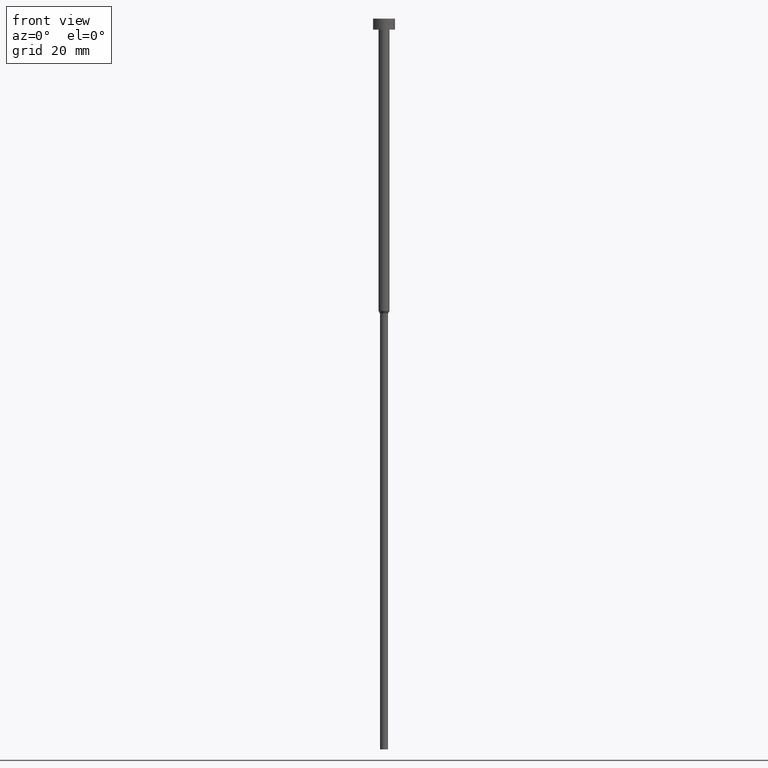
[diagram: clean part render]
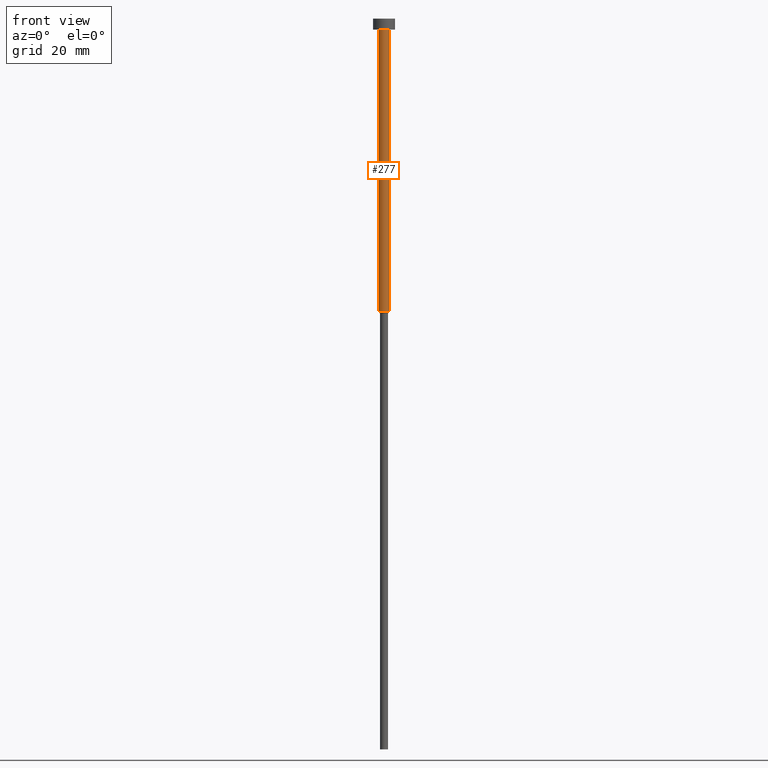
[diagram: same view with one face highlighted and labeled with its STEP entity id]
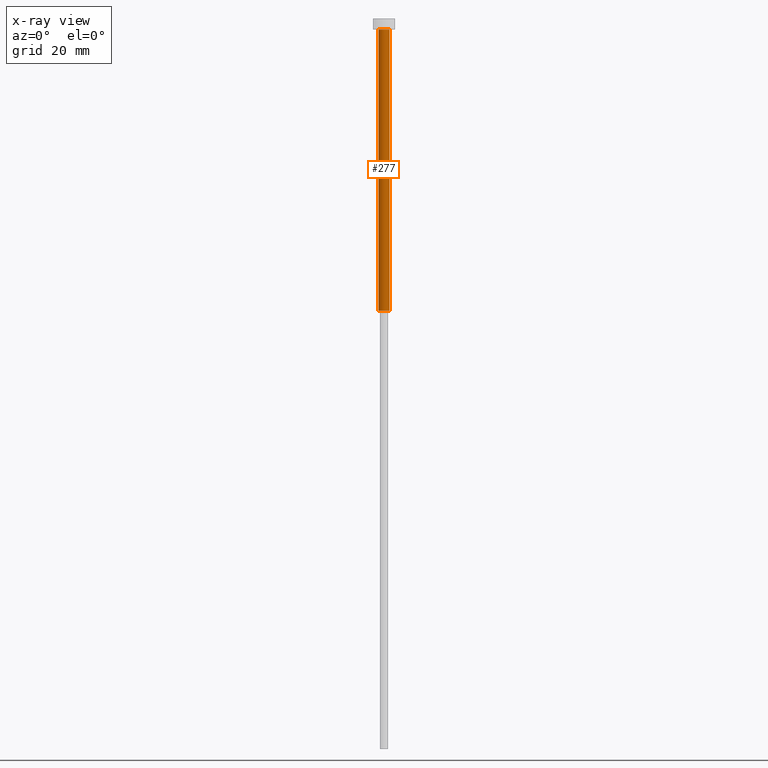
[diagram: x-ray of the same camera — body ghosted, the highlighted face saturated]
A machine part, front view. The second image highlights one B-rep face of the part: STEP entity #277.
The next image is the same camera in x-ray: the body ghosted, the highlighted face saturated — about 0% of this face is hidden behind the body in this view.
In plain terms, the highlighted cylindrical surface (edge-blend (fillet) strip) has radius 1.5 mm, axis along (-0, -0, 1).
Its self-contained STEP definition (entity closure, byte-faithful):
#1 = CIRCLE ( 'NONE', #33, 1.500000000000000000 ) ;
#3 = CIRCLE ( 'NONE', #343, 1.500000000000000000 ) ;
#12 = AXIS2_PLACEMENT_3D ( 'NONE', #246, #174, #254 ) ;
#30 = VECTOR ( 'NONE', #132, 1000.000000000000000 ) ;
#33 = AXIS2_PLACEMENT_3D ( 'NONE', #195, #247, #327 ) ;
#41 = LINE ( 'NONE', #341, #210 ) ;
#72 = EDGE_CURVE ( 'NONE', #294, #347, #165, .T. ) ;
#87 = ORIENTED_EDGE ( 'NONE', *, *, #322, .T. ) ;
#90 = CARTESIAN_POINT ( 'NONE',  ( -1.500000000000000000, 1.836970198721029934E-16, -3.000000000000000888 ) ) ;
#95 = CARTESIAN_POINT ( 'NONE',  ( 0.000000000000000000, 0.000000000000000000, -80.00000000000000000 ) ) ;
#97 = ORIENTED_EDGE ( 'NONE', *, *, #117, .T. ) ;
#109 = CARTESIAN_POINT ( 'NONE',  ( 1.500000000000000000, 0.000000000000000000, -3.000000000000000888 ) ) ;
#113 = CARTESIAN_POINT ( 'NONE',  ( 1.500000000000000000, 0.000000000000000000, -80.00000000000000000 ) ) ;
#116 = DIRECTION ( 'NONE',  ( 1.000000000000000000, 0.000000000000000000, 0.000000000000000000 ) ) ;
#117 = EDGE_CURVE ( 'NONE', #150, #222, #41, .T. ) ;
#132 = DIRECTION ( 'NONE',  ( -0.000000000000000000, -0.000000000000000000, 1.000000000000000000 ) ) ;
#139 = EDGE_CURVE ( 'NONE', #347, #222, #1, .T. ) ;
#149 = DIRECTION ( 'NONE',  ( -0.000000000000000000, -0.000000000000000000, 1.000000000000000000 ) ) ;
#150 = VERTEX_POINT ( 'NONE', #113 ) ;
#165 = LINE ( 'NONE', #267, #30 ) ;
#174 = DIRECTION ( 'NONE',  ( -0.000000000000000000, -0.000000000000000000, 1.000000000000000000 ) ) ;
#195 = CARTESIAN_POINT ( 'NONE',  ( 0.000000000000000000, 0.000000000000000000, -3.000000000000000888 ) ) ;
#210 = VECTOR ( 'NONE', #330, 1000.000000000000000 ) ;
#222 = VERTEX_POINT ( 'NONE', #109 ) ;
#224 = CYLINDRICAL_SURFACE ( 'NONE', #12, 1.500000000000000000 ) ;
#246 = CARTESIAN_POINT ( 'NONE',  ( 0.000000000000000000, 0.000000000000000000, 0.000000000000000000 ) ) ;
#247 = DIRECTION ( 'NONE',  ( -0.000000000000000000, -0.000000000000000000, 1.000000000000000000 ) ) ;
#254 = DIRECTION ( 'NONE',  ( 1.000000000000000000, 0.000000000000000000, 0.000000000000000000 ) ) ;
#257 = ORIENTED_EDGE ( 'NONE', *, *, #72, .F. ) ;
#267 = CARTESIAN_POINT ( 'NONE',  ( -1.500000000000000000, 1.836970198721029934E-16, 0.000000000000000000 ) ) ;
#277 = ADVANCED_FACE ( 'NONE', ( #324 ), #224, .T. ) ;
#280 = CARTESIAN_POINT ( 'NONE',  ( -1.500000000000000000, 1.836970198721029934E-16, -80.00000000000000000 ) ) ;
#294 = VERTEX_POINT ( 'NONE', #280 ) ;
#321 = ORIENTED_EDGE ( 'NONE', *, *, #139, .F. ) ;
#322 = EDGE_CURVE ( 'NONE', #294, #150, #3, .T. ) ;
#323 = EDGE_LOOP ( 'NONE', ( #257, #87, #97, #321 ) ) ;
#324 = FACE_OUTER_BOUND ( 'NONE', #323, .T. ) ;
#327 = DIRECTION ( 'NONE',  ( 1.000000000000000000, 0.000000000000000000, 0.000000000000000000 ) ) ;
#330 = DIRECTION ( 'NONE',  ( -0.000000000000000000, -0.000000000000000000, 1.000000000000000000 ) ) ;
#341 = CARTESIAN_POINT ( 'NONE',  ( 1.500000000000000000, 0.000000000000000000, 0.000000000000000000 ) ) ;
#343 = AXIS2_PLACEMENT_3D ( 'NONE', #95, #149, #116 ) ;
#347 = VERTEX_POINT ( 'NONE', #90 ) ;